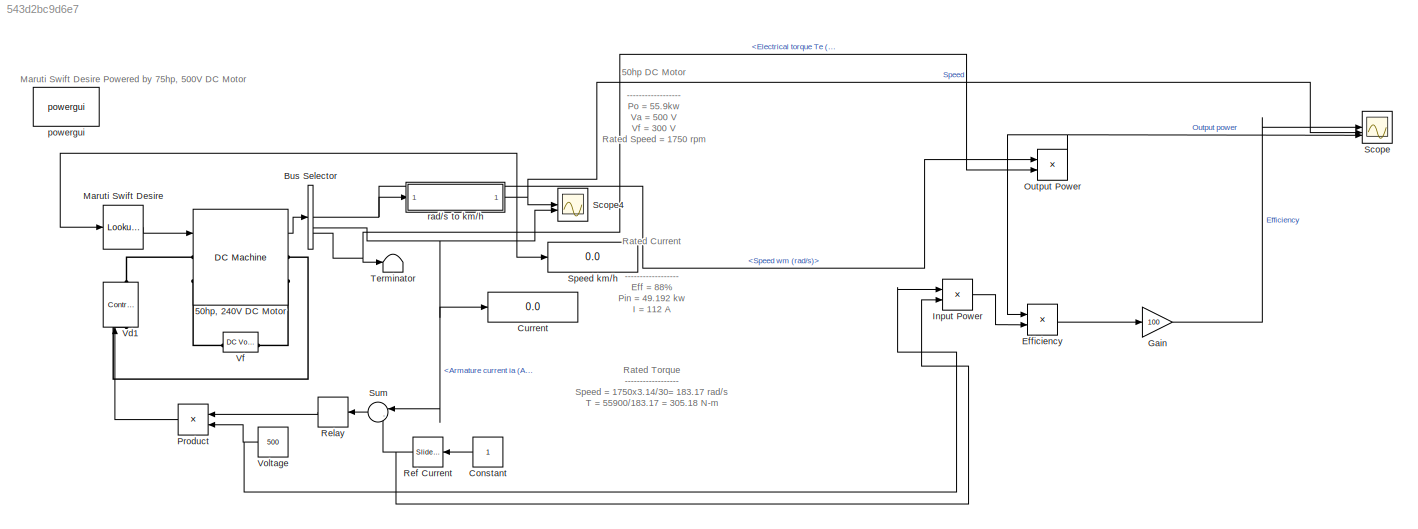
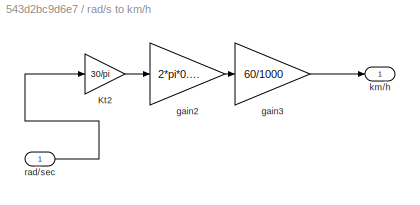
MODEL slx_543d2bc9d6e7
KIND model
CONFIG AbsTol = auto
CONFIG EnableMultiTasking = on
CONFIG FixedStep = auto
CONFIG MaxStep = auto
CONFIG MinStep = auto
CONFIG RelTol = 1e-3
CONFIG SampleTimeConstraint = Unconstrained
CONFIG SolverName = ode45
CONFIG StartTime = 0.0
CONFIG StopTime = 100
BLOCK [Reference] 50hp, 240V DC Motor  REF=spsDCMachineLib/DC Machine
  LibrarySourceBlock = sps_lib/Electrical Machines/DC Machine
  SourceBlock = spsDCMachineLib/DC Machine
  SourceType = DC machine
BLOCK [BusSelector] Bus Selector
  OutputSignals = Speed wm (rad/s),Armature current ia (A),Electrical torque Te (n m)
BLOCK [Constant] Constant
BLOCK [Display] Current
  Decimation = 1
BLOCK [Product] Efficiency
  Inputs = */
BLOCK [Gain] Gain
  Gain = 100
BLOCK [Product] Input Power
BLOCK [Lookup_n-D] Maruti Swift Desire
  BreakpointsForDimension1 = [0, 50, 60, 70, 80, 100, 150, 200, 250, 300, 350]
  InputPortMap = u0
  InternalRulePriority = Speed
  NameLocation = top
  NumberOfTableDimensions = 1
  RndMeth = Simplest
  Table = [0,20.37,27.76, 34.83, 41.62, 54.38, 82.49, 106.4, 127.2,145.7,162.4]
BLOCK [Product] Output Power
BLOCK [Product] Product
BLOCK [Reference] Ref Current  REF=simulink/Math
Operations/Slider
Gain
  SourceBlock = simulink/Math\nOperations/Slider\nGain
  SourceType = Slider Gain
BLOCK [Relay] Relay
  OffSwitchValue = -2
  OnSwitchValue = 2
BLOCK [Scope] Scope
  Floating = off
  NumInputPorts = 3
  ScopeSpecificationString = Simulink.scopes.TimeScopeBlockCfg('CurrentConfiguration', extmgr.ConfigurationSet(extmgr.Configuration('Core','General UI',true),extmgr.Configuration('Core','Source UI',true),extmgr.Configuration('Sources','WiredSimulink',true),extmgr.Configuration('Visuals','Time Domain',true,'SerializedDisplays',{struct('MinYLimReal','-11.38628','MaxYLimReal','102.68983','YLabelReal','','MinYLimMag','  0.00000',...<+2873ch>
BLOCK [Scope] Scope4
  Floating = off
  NumInputPorts = 2
  ScopeSpecificationString = Simulink.scopes.TimeScopeBlockCfg('CurrentConfiguration', extmgr.ConfigurationSet(extmgr.Configuration('Core','General UI',true),extmgr.Configuration('Core','Source UI',true),extmgr.Configuration('Sources','WiredSimulink',true,'DataLoggingVariableName','ScopeData3','DataLoggingSaveFormat','Array','DataLoggingDecimation','1','DataLoggingDecimateData',true),extmgr.Configuration('Visuals','Time Domai...<+2403ch>
BLOCK [Display] Speed km//h
  Decimation = 1
BLOCK [Sum] Sum
  Inputs = |-+
BLOCK [Terminator] Terminator
BLOCK [Reference] Vd1  REF=spsControlledVoltageSourceLib/Controlled Voltage Source
  LibrarySourceBlock = sps_lib/Sources/Controlled Voltage Source
  NameLocation = right
  SourceBlock = spsControlledVoltageSourceLib/Controlled Voltage Source
  SourceType = Controlled Voltage Source
BLOCK [Reference] Vf  REF=spsDCVoltageSourceLib/DC Voltage Source
  LibrarySourceBlock = sps_lib/Sources/DC Voltage Source
  SourceBlock = spsDCVoltageSourceLib/DC Voltage Source
  SourceType = DC Voltage Source
BLOCK [Constant] Voltage
  Value = 500
BLOCK [Reference] powergui  REF=spspowerguiLib/powergui
  LibrarySourceBlock = sps_lib/powergui
  Priority = 1
  SourceBlock = spspowerguiLib/powergui
  SourceType = PSB option menu block
BLOCK [SubSystem] rad//s to km//h
BLOCK [Gain] rad//s to km//h/Kt2
  Gain = 30/pi
BLOCK [Gain] rad//s to km//h/gain2
  Gain = 2*pi*0.279
BLOCK [Gain] rad//s to km//h/gain3
  Gain = 60/1000
BLOCK [Outport] rad//s to km//h/km//h
BLOCK [Inport] rad//s to km//h/rad//sec
ANNOTATION (root): Rated Current ------------------ Eff = 88% Pin = 49.192 kw I = 112 A
ANNOTATION (root): Rated Torque ------------------ Speed = 1750x3.14/30= 183.17 rad/s T = 55900/183.17 = 305.18 N-m
ANNOTATION (root): Maruti Swift Desire Powered by 75hp, 500V DC Motor
ANNOTATION (root): 50hp DC Motor ------------------ Po = 55.9kw Va = 500 V Vf = 300 V Rated Speed = 1750 rpm
LINE 50hp, 240V DC Motor:1 -> Bus Selector:1
NET Bus Selector:1 -> Output Power:1, rad//s to km//h:1
NET Bus Selector:2 -> Current:1, Scope4:2, Sum:1
NET Bus Selector:3 -> Output Power:2, Terminator:1
LINE Constant:1 -> Ref Current:1
LINE Efficiency:1 -> Gain:1
LINE Gain:1 -> Scope:1
LINE Input Power:1 -> Efficiency:2
LINE Maruti Swift Desire:1 -> 50hp, 240V DC Motor:1
NET Output Power:1 -> Efficiency:1, Scope:3
LINE Product:1 -> Vd1:1
NET Ref Current:1 -> Input Power:2, Sum:2
LINE Relay:1 -> Product:1
LINE Sum:1 -> Relay:1
NET Voltage:1 -> Input Power:1, Product:2
LINE rad//s to km//h/Kt2:1 -> rad//s to km//h/gain2:1
LINE rad//s to km//h/gain2:1 -> rad//s to km//h/gain3:1
LINE rad//s to km//h/gain3:1 -> rad//s to km//h/km//h:1
LINE rad//s to km//h/rad//sec:1 -> rad//s to km//h/Kt2:1
NET rad//s to km//h:1 -> Maruti Swift Desire:1, Scope4:1, Scope:2, Speed km//h:1
PLINE 50hp, 240V DC Motor:LConn1 -- Vd1:RConn1
PLINE 50hp, 240V DC Motor:LConn2 -- Vf:RConn1
PLINE 50hp, 240V DC Motor:RConn1 -- Vd1:LConn1
PLINE 50hp, 240V DC Motor:RConn2 -- Vf:LConn1
note: NET lines group one-source signal fan-out (src -> all destinations, sorted); 1:1 wires keep LINE
